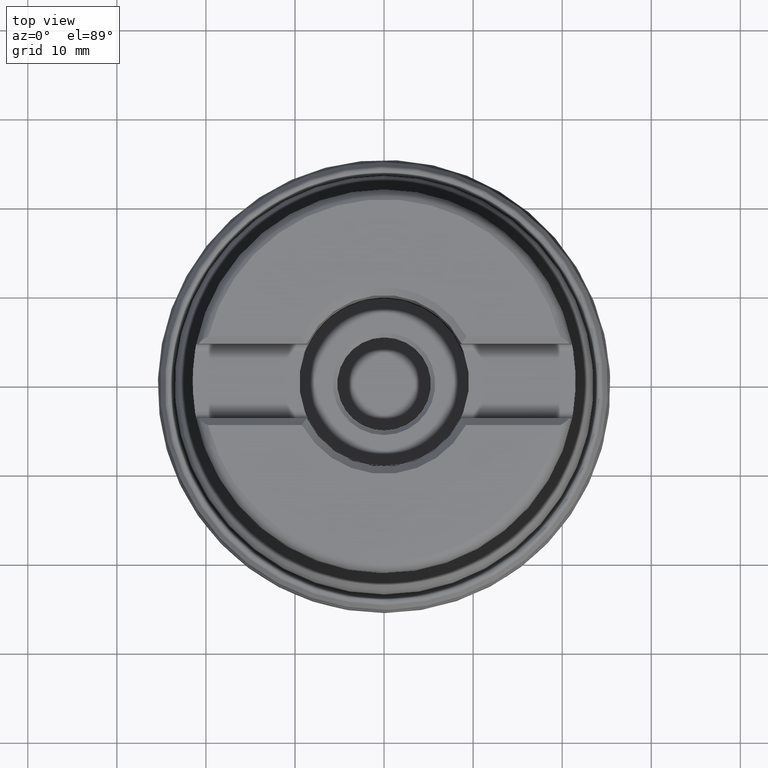
[diagram: clean part render]
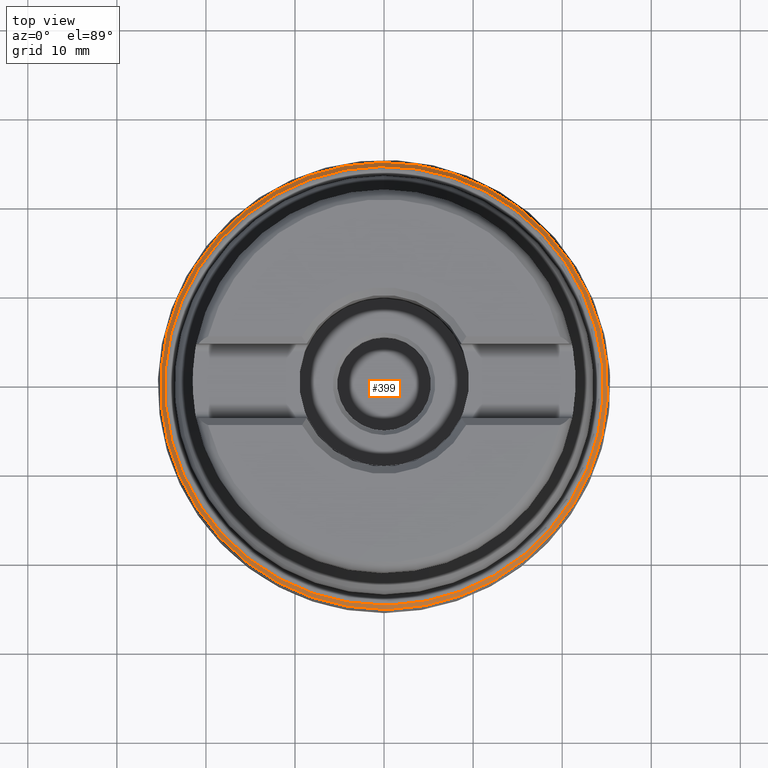
[diagram: same view with one face highlighted and labeled with its STEP entity id]
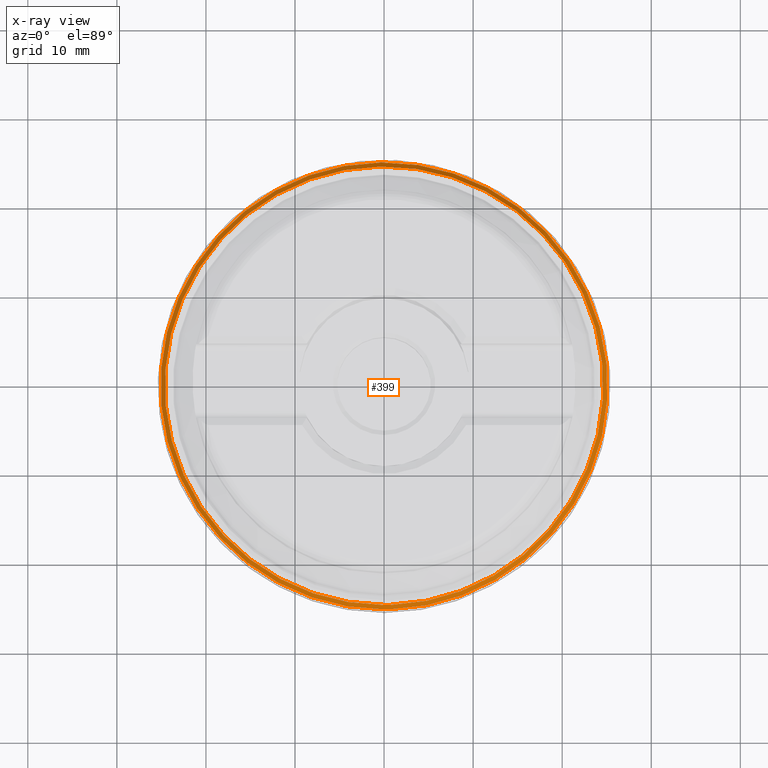
[diagram: x-ray of the same camera — body ghosted, the highlighted face saturated]
A machine part, top view. The second image highlights one B-rep face of the part: STEP entity #399.
The next image is the same camera in x-ray: the body ghosted, the highlighted face saturated — about 0% of this face is hidden behind the body in this view.
In plain terms, the highlighted face is a SurfaceOfRevolution surface.
Its self-contained STEP definition (entity closure, byte-faithful):
#107=SURFACE_OF_REVOLUTION('',#310,#126);
#126=AXIS1_PLACEMENT('',#2267,#1523);
#227=FACE_BOUND('',#549,.T.);
#228=FACE_BOUND('',#550,.T.);
#310=LINE('',#2266,#335);
#335=VECTOR('',#1522,0.937230349394753);
#399=ADVANCED_FACE('',(#227,#228),#107,.T.);
#549=EDGE_LOOP('',(#783));
#550=EDGE_LOOP('',(#784));
#783=ORIENTED_EDGE('',*,*,#1011,.T.);
#784=ORIENTED_EDGE('',*,*,#1012,.F.);
#894=VERTEX_POINT('',#2251);
#895=VERTEX_POINT('',#2265);
#1011=EDGE_CURVE('',#894,#894,#1076,.T.);
#1012=EDGE_CURVE('',#895,#895,#1077,.T.);
#1076=CIRCLE('',#1263,24.61917385204);
#1077=CIRCLE('',#1264,25.0951954531476);
#1263=AXIS2_PLACEMENT_3D('',#2250,#1517,#1518);
#1264=AXIS2_PLACEMENT_3D('',#2264,#1520,#1521);
#1517=DIRECTION('',(0.,-1.17145536458252E-15,-1.));
#1518=DIRECTION('',(0.,-1.,1.16262785768685E-15));
#1520=DIRECTION('',(0.,-1.17145536458252E-15,-1.));
#1521=DIRECTION('',(0.,-1.,1.17513725472526E-15));
#1522=DIRECTION('',(-0.495211677308202,0.150860735238313,0.85557374505121));
#1523=DIRECTION('',(0.,1.17145536458252E-15,1.));
#2250=CARTESIAN_POINT('',(0.,8.39308592135269E-15,7.16466557336033));
#2251=CARTESIAN_POINT('',(0.,-24.61917385204,7.16466557336036));
#2264=CARTESIAN_POINT('',(0.,7.45373138764322E-15,6.36279589730637));
#2265=CARTESIAN_POINT('',(0.,-25.0951954531476,6.3627958973064));
#2266=CARTESIAN_POINT('',(24.9624198142012,-2.57806746444992,6.36279589730637));
#2267=CARTESIAN_POINT('',(0.,0.,0.));